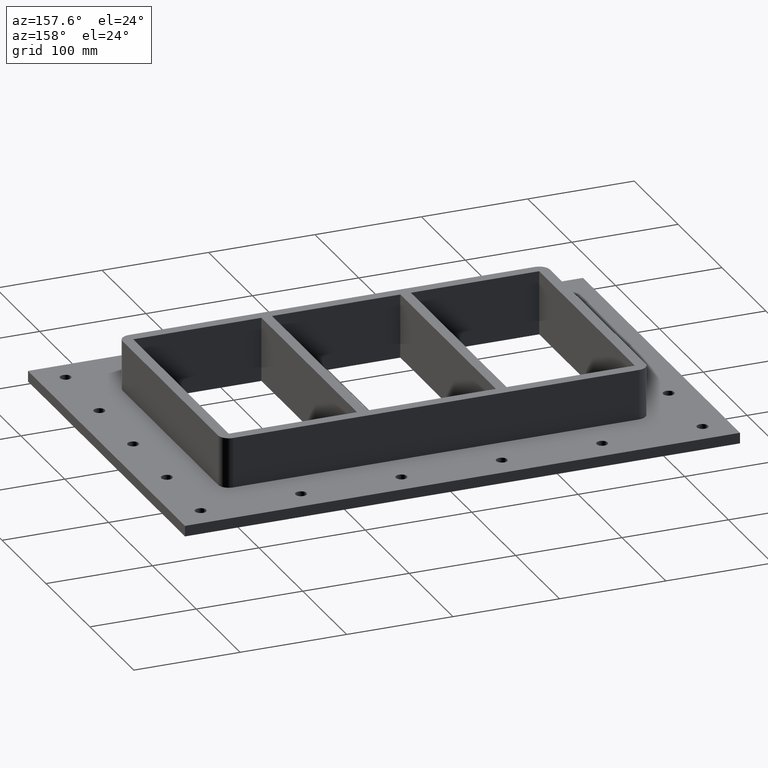
[diagram: clean part render]
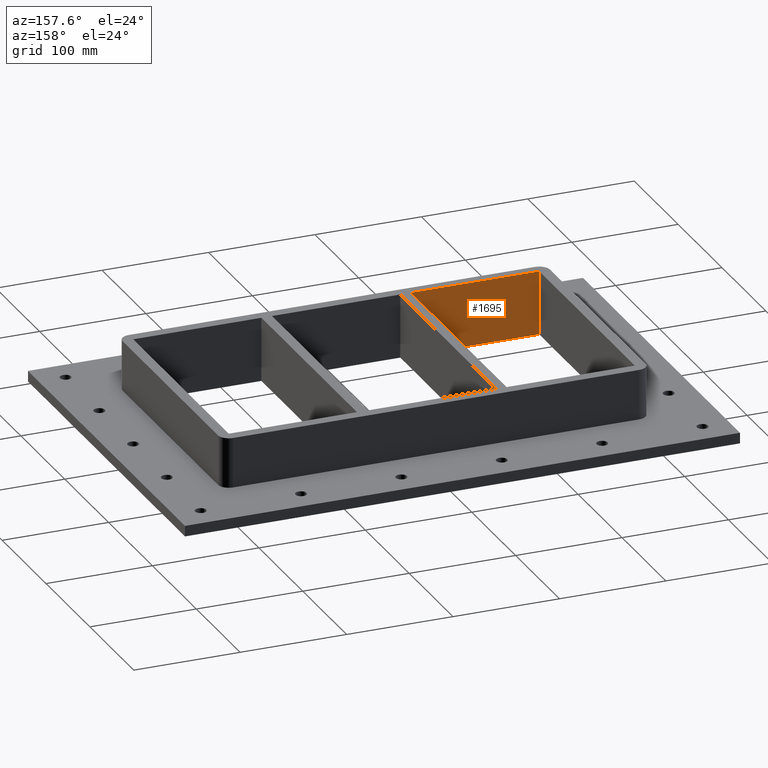
[diagram: same view with one face highlighted and labeled with its STEP entity id]
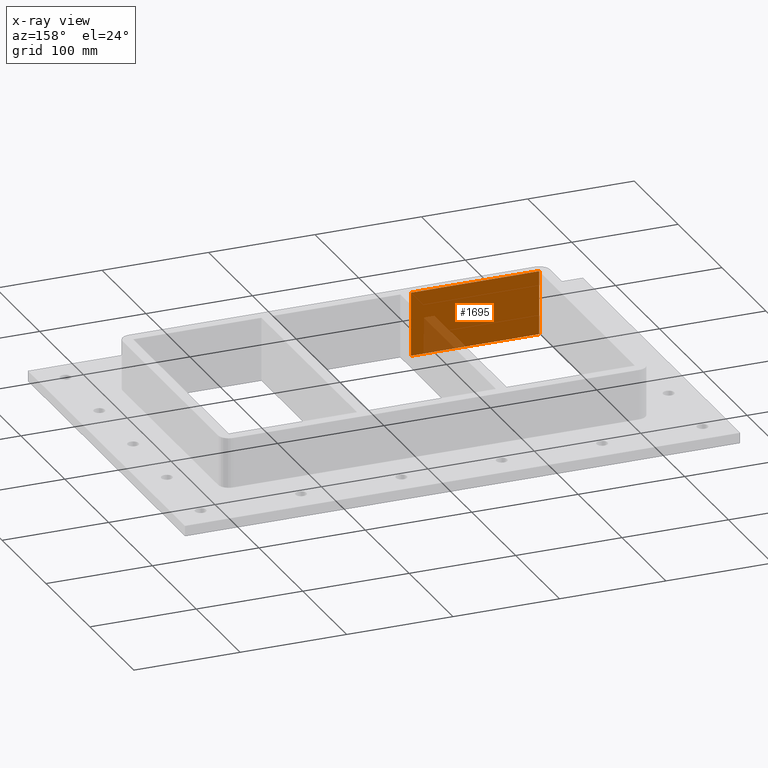
[diagram: x-ray of the same camera — body ghosted, the highlighted face saturated]
A machine part, auxiliary view. The second image highlights one B-rep face of the part: STEP entity #1695.
The next image is the same camera in x-ray: the body ghosted, the highlighted face saturated — about 12% of this face is hidden behind the body in this view.
In plain terms, the highlighted planar face has unit normal (0, -1, 0).
Its self-contained STEP definition (entity closure, byte-faithful):
#1306=CARTESIAN_POINT('',(-70.250000000000028,-109.00000000000003,-30.0));
#1307=VERTEX_POINT('',#1306);
#1324=CARTESIAN_POINT('',(-190.75000000000003,-108.99999999999977,-30.0));
#1325=VERTEX_POINT('',#1324);
#1332=CARTESIAN_POINT('',(-190.75000000000003,-108.99999999999976,-30.0));
#1333=DIRECTION('',(1.0,0.0,0.0));
#1334=VECTOR('',#1333,120.50000000000001);
#1335=LINE('',#1332,#1334);
#1336=EDGE_CURVE('',#1325,#1307,#1335,.T.);
#1655=CARTESIAN_POINT('',(-190.75000000000003,-108.99999999999977,30.0));
#1656=VERTEX_POINT('',#1655);
#1663=CARTESIAN_POINT('',(-190.75000000000003,-108.99999999999977,30.0));
#1664=DIRECTION('',(0.0,0.0,-1.0));
#1665=VECTOR('',#1664,60.0);
#1666=LINE('',#1663,#1665);
#1667=EDGE_CURVE('',#1656,#1325,#1666,.T.);
#1672=CARTESIAN_POINT('',(-70.250000000000028,-109.00000000000003,30.0));
#1673=DIRECTION('',(0.0,-1.0,0.0));
#1674=DIRECTION('',(-1.0,0.0,0.0));
#1675=AXIS2_PLACEMENT_3D('',#1672,#1673,#1674);
#1676=PLANE('',#1675);
#1677=ORIENTED_EDGE('',*,*,#1336,.F.);
#1678=ORIENTED_EDGE('',*,*,#1667,.F.);
#1679=CARTESIAN_POINT('',(-70.250000000000028,-109.00000000000003,30.0));
#1680=VERTEX_POINT('',#1679);
#1681=CARTESIAN_POINT('',(-70.250000000000014,-109.00000000000001,30.0));
#1682=DIRECTION('',(-1.0,0.0,0.0));
#1683=VECTOR('',#1682,120.50000000000001);
#1684=LINE('',#1681,#1683);
#1685=EDGE_CURVE('',#1680,#1656,#1684,.T.);
#1686=ORIENTED_EDGE('',*,*,#1685,.F.);
#1687=CARTESIAN_POINT('',(-70.250000000000028,-109.00000000000003,30.0));
#1688=DIRECTION('',(0.0,0.0,-1.0));
#1689=VECTOR('',#1688,60.0);
#1690=LINE('',#1687,#1689);
#1691=EDGE_CURVE('',#1680,#1307,#1690,.T.);
#1692=ORIENTED_EDGE('',*,*,#1691,.T.);
#1693=EDGE_LOOP('',(#1677,#1678,#1686,#1692));
#1694=FACE_OUTER_BOUND('',#1693,.T.);
#1695=ADVANCED_FACE('',(#1694),#1676,.F.);